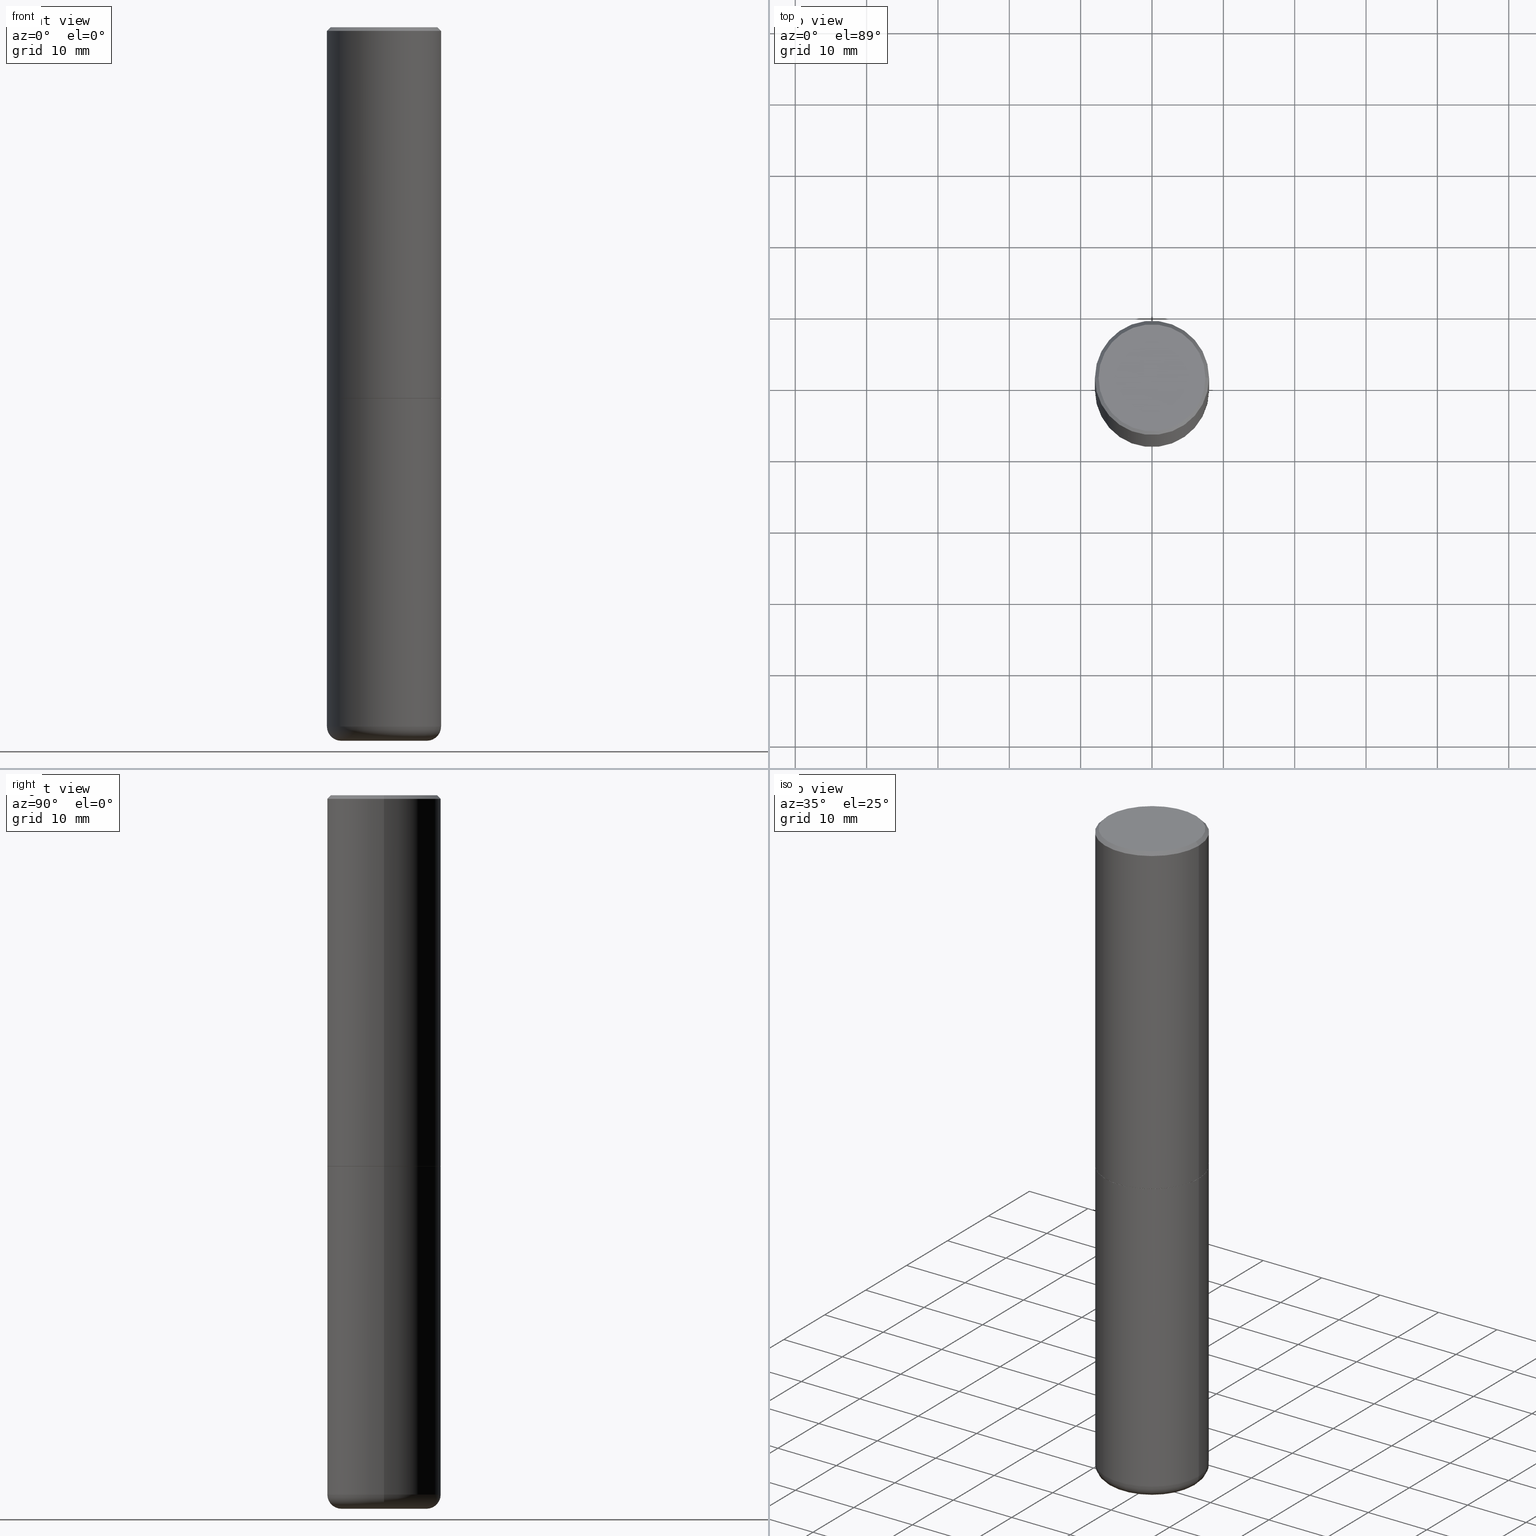
[diagram: canonical four-view strip — front | top / right | iso, engineering-drawing reading convention]
A machine part, canonical four-view strip (front | top / right | iso — engineering-drawing reading convention). The complete STEP part file that produces these views, byte-faithful:
ISO-10303-21;
HEADER;
FILE_DESCRIPTION (( 'STEP AP203' ),
    '1' );
FILE_NAME ('74767.STEP',
    '2024-05-02T19:17:15',
    ( '' ),
    ( '' ),
    'SwSTEP 2.0',
    'SolidWorks 2023',
    '' );
FILE_SCHEMA (( 'CONFIG_CONTROL_DESIGN' ));
ENDSEC;

DATA;
#1 = DIRECTION ( 'NONE',  ( -1.000000000000000000, 6.982962677686265922E-15, -4.876176775795935793E-29 ) ) ;
#2 = EDGE_LOOP ( 'NONE', ( #113, #131, #57, #331 ) ) ;
#3 = FACE_OUTER_BOUND ( 'NONE', #336, .T. ) ;
#4 = CARTESIAN_POINT ( 'NONE',  ( 0.3149500000000000077, -2.199284095337289871E-15, 1.535751875536930130E-29 ) ) ;
#5 = DIRECTION ( 'NONE',  ( -2.445468806185136597E-29, 3.491481338843145583E-15, 1.000000000000000000 ) ) ;
#6 = ADVANCED_FACE ( 'NONE', ( #414 ), #221, .T. ) ;
#7 = APPLICATION_CONTEXT ( 'configuration controlled 3d designs of mechanical parts and assemblies' ) ;
#8 = APPROVAL_STATUS ( 'not_yet_approved' ) ;
#9 = AXIS2_PLACEMENT_3D ( 'NONE', #308, #129, #286 ) ;
#10 = DIRECTION ( 'NONE',  ( -2.445468806185136597E-29, 3.491481338843145583E-15, 1.000000000000000000 ) ) ;
#11 = APPROVAL_ROLE ( '' ) ;
#12 = ADVANCED_FACE ( 'NONE', ( #348 ), #212, .T. ) ;
#13 = DIRECTION ( 'NONE',  ( 1.000000000000000000, -6.982962677686266711E-15, 4.876176775795936353E-29 ) ) ;
#14 = ADVANCED_FACE ( 'NONE', ( #158 ), #312, .T. ) ;
#15 = PERSON_AND_ORGANIZATION ( #81, #203 ) ;
#16 = VERTEX_POINT ( 'NONE', #97 ) ;
#17 = PERSON_AND_ORGANIZATION_ROLE ( 'design_owner' ) ;
#18 = CIRCLE ( 'NONE', #210, 0.2362500000000000155 ) ;
#19 = AXIS2_PLACEMENT_3D ( 'NONE', #378, #218, #67 ) ;
#20 = CC_DESIGN_SECURITY_CLASSIFICATION ( #417, ( #325 ) ) ;
#21 = ADVANCED_FACE ( 'NONE', ( #3 ), #411, .F. ) ;
#22 = PRODUCT_DEFINITION ( 'UNKNOWN', '', #325, #330 ) ;
#23 = ORIENTED_EDGE ( 'NONE', *, *, #146, .T. ) ;
#24 = AXIS2_PLACEMENT_3D ( 'NONE', #282, #306, #345 ) ;
#25 = CIRCLE ( 'NONE', #173, 0.3149500000000002853 ) ;
#26 = CC_DESIGN_APPROVAL ( #53, ( #417 ) ) ;
#27 = DIRECTION ( 'NONE',  ( -2.445468806185136597E-29, 3.491481338843145583E-15, 1.000000000000000000 ) ) ;
#28 = ADVANCED_FACE ( 'NONE', ( #192 ), #166, .T. ) ;
#29 = CARTESIAN_POINT ( 'NONE',  ( 5.003918271216025517E-29, -7.144269115540843617E-15, -2.046199999999999797 ) ) ;
#30 = ORIENTED_EDGE ( 'NONE', *, *, #205, .F. ) ;
#31 = DIRECTION ( 'NONE',  ( 1.000000000000000000, -6.982962677686269866E-15, 0.000000000000000000 ) ) ;
#32 = VERTEX_POINT ( 'NONE', #225 ) ;
#33 = CARTESIAN_POINT ( 'NONE',  ( 2.059624841783562486E-15, 0.2949499999999997679, -9.380394023546260134E-16 ) ) ;
#34 = FACE_OUTER_BOUND ( 'NONE', #165, .T. ) ;
#35 = CONICAL_SURFACE ( 'NONE', #291, 0.3149499999999999522, 0.7853981633974469467 ) ;
#36 = FACE_OUTER_BOUND ( 'NONE', #182, .T. ) ;
#37 = EDGE_CURVE ( 'NONE', #381, #351, #315, .T. ) ;
#38 = CARTESIAN_POINT ( 'NONE',  ( 0.3149500000000000077, -9.347044692216978073E-15, -2.047199999999999687 ) ) ;
#39 = DATE_AND_TIME ( #401, #211 ) ;
#40 = DIRECTION ( 'NONE',  ( -2.445468806185136597E-29, 3.491481338843145583E-15, 1.000000000000000000 ) ) ;
#41 = DIRECTION ( 'NONE',  ( -0.7071067811867165487, 7.493145998870964739E-15, 0.7071067811863784858 ) ) ;
#42 = CIRCLE ( 'NONE', #94, 0.07870000000000021423 ) ;
#43 = DIRECTION ( 'NONE',  ( 1.000000000000000000, -6.982962677686269866E-15, 0.000000000000000000 ) ) ;
#44 = PERSON_AND_ORGANIZATION ( #81, #203 ) ;
#45 = EDGE_CURVE ( 'NONE', #157, #410, #416, .T. ) ;
#46 = ORIENTED_EDGE ( 'NONE', *, *, #205, .T. ) ;
#47 = CARTESIAN_POINT ( 'NONE',  ( -0.3149500000000001743, 2.237854346276436774E-15, -1.549218606675783237E-29 ) ) ;
#48 = AXIS2_PLACEMENT_3D ( 'NONE', #230, #361, #82 ) ;
#49 = APPROVAL_ROLE ( '' ) ;
#50 = PRODUCT_RELATED_PRODUCT_CATEGORY ( 'detail', '', ( #169 ) ) ;
#51 = SHAPE_DEFINITION_REPRESENTATION ( #224, #406 ) ;
#52 = EDGE_CURVE ( 'NONE', #214, #255, #179, .T. ) ;
#53 = APPROVAL ( #64, 'UNSPECIFIED' ) ;
#54 = VECTOR ( 'NONE', #357, 39.37007874015748143 ) ;
#55 = EDGE_CURVE ( 'NONE', #217, #200, #257, .T. ) ;
#56 = EDGE_CURVE ( 'NONE', #377, #16, #362, .T. ) ;
#57 = ORIENTED_EDGE ( 'NONE', *, *, #52, .F. ) ;
#58 = EDGE_LOOP ( 'NONE', ( #23, #364, #63, #340 ) ) ;
#59 = DIRECTION ( 'NONE',  ( 1.000000000000000000, -6.982962677686263555E-15, 0.000000000000000000 ) ) ;
#60 = AXIS2_PLACEMENT_3D ( 'NONE', #93, #247, #89 ) ;
#61 = APPROVAL_PERSON_ORGANIZATION ( #294, #332, #49 ) ;
#62 = CARTESIAN_POINT ( 'NONE',  ( 0.3149499999999999522, -2.230543471175006661E-15, -0.02000000000000006981 ) ) ;
#63 = ORIENTED_EDGE ( 'NONE', *, *, #55, .F. ) ;
#64 = APPROVAL_STATUS ( 'not_yet_approved' ) ;
#65 = CARTESIAN_POINT ( 'NONE',  ( 4.890937612370289799E-31, -6.982962677686315028E-17, -0.02000000000000006981 ) ) ;
#66 = EDGE_LOOP ( 'NONE', ( #246, #311, #391, #119 ) ) ;
#67 = DIRECTION ( 'NONE',  ( 1.000000000000000000, -6.982962677686269866E-15, 0.000000000000000000 ) ) ;
#68 = ADVANCED_FACE ( 'NONE', ( #201 ), #143, .T. ) ;
#69 = DIRECTION ( 'NONE',  ( -2.445468806185136597E-29, 3.491481338843145583E-15, 1.000000000000000000 ) ) ;
#70 = DIRECTION ( 'NONE',  ( 2.438088387897960049E-29, -3.491481338843145188E-15, -1.000000000000000000 ) ) ;
#71 = ADVANCED_FACE ( 'NONE', ( #395 ), #213, .T. ) ;
#72 = AXIS2_PLACEMENT_3D ( 'NONE', #386, #413, #216 ) ;
#73 = DIRECTION ( 'NONE',  ( 2.445468806185136597E-29, -3.491481338843145583E-15, -1.000000000000000000 ) ) ;
#74 = APPROVAL_PERSON_ORGANIZATION ( #76, #53, #11 ) ;
#75 = DIRECTION ( 'NONE',  ( -2.445468806185136597E-29, 3.491481338843145583E-15, 1.000000000000000000 ) ) ;
#76 = PERSON_AND_ORGANIZATION ( #81, #203 ) ;
#77 = FACE_OUTER_BOUND ( 'NONE', #2, .T. ) ;
#78 = MECHANICAL_CONTEXT ( 'NONE', #397, 'mechanical' ) ;
#79 = EDGE_CURVE ( 'NONE', #133, #217, #260, .T. ) ;
#80 = DIRECTION ( 'NONE',  ( 1.000000000000000000, -6.982962677686265133E-15, 4.883557194083112901E-29 ) ) ;
#81 = PERSON ( 'UNSPECIFIED', 'UNSPECIFIED', 'UNSPECIFIED', ('UNSPECIFIED'), ('UNSPECIFIED'), ('UNSPECIFIED') ) ;
#82 = DIRECTION ( 'NONE',  ( -1.000000000000000000, 6.982962677686265922E-15, -4.876176775795935793E-29 ) ) ;
#83 = ORIENTED_EDGE ( 'NONE', *, *, #313, .T. ) ;
#84 = CALENDAR_DATE ( 2024, 2, 5 ) ;
#85 = VECTOR ( 'NONE', #41, 39.37007874015748143 ) ;
#86 = AXIS2_PLACEMENT_3D ( 'NONE', #65, #254, #170 ) ;
#87 = ORIENTED_EDGE ( 'NONE', *, *, #236, .F. ) ;
#88 = ORIENTED_EDGE ( 'NONE', *, *, #270, .T. ) ;
#89 = DIRECTION ( 'NONE',  ( 1.000000000000000000, -6.982962677686265922E-15, 4.876176775795935232E-29 ) ) ;
#90 = PLANE ( 'NONE',  #72 ) ;
#91 = EDGE_CURVE ( 'NONE', #408, #154, #387, .T. ) ;
#92 = ORIENTED_EDGE ( 'NONE', *, *, #37, .F. ) ;
#93 = CARTESIAN_POINT ( 'NONE',  ( 0.000000000000000000, 0.000000000000000000, 0.000000000000000000 ) ) ;
#94 = AXIS2_PLACEMENT_3D ( 'NONE', #383, #310, #222 ) ;
#95 = PLANE ( 'NONE',  #404 ) ;
#96 = ORIENTED_EDGE ( 'NONE', *, *, #37, .T. ) ;
#97 = CARTESIAN_POINT ( 'NONE',  ( -0.2362500000000000155, -1.165031646058715016E-14, -3.937000000000000721 ) ) ;
#98 = CARTESIAN_POINT ( 'NONE',  ( 0.2362500000000000155, -1.539568696362884818E-14, -3.937000000000000721 ) ) ;
#99 = CC_DESIGN_PERSON_AND_ORGANIZATION_ASSIGNMENT ( #44, #17, ( #169 ) ) ;
#100 = DIRECTION ( 'NONE',  ( 1.000000000000000000, -6.982962677686264344E-15, 0.000000000000000000 ) ) ;
#101 = DIRECTION ( 'NONE',  ( 1.000000000000000000, -6.982962677686266711E-15, 0.000000000000000000 ) ) ;
#102 = VECTOR ( 'NONE', #359, 39.37007874015748143 ) ;
#103 = CARTESIAN_POINT ( 'NONE',  ( 4.890937612370289799E-31, -6.982962677686315028E-17, -0.02000000000000006981 ) ) ;
#104 = CARTESIAN_POINT ( 'NONE',  ( 9.627810689950884790E-29, -1.374596203102546657E-14, -3.937000000000000721 ) ) ;
#105 = APPROVAL_STATUS ( 'not_yet_approved' ) ;
#106 = CARTESIAN_POINT ( 'NONE',  ( -0.3149499999999999522, 2.129454468560426178E-15, -0.02000000000000006981 ) ) ;
#107 = DATE_AND_TIME ( #358, #258 ) ;
#108 = ORIENTED_EDGE ( 'NONE', *, *, #91, .F. ) ;
#109 = CARTESIAN_POINT ( 'NONE',  ( 9.435352294904112142E-29, -1.347118244965850850E-14, -3.858300000000000285 ) ) ;
#110 = SECURITY_CLASSIFICATION_LEVEL ( 'unclassified' ) ;
#111 = CONICAL_SURFACE ( 'NONE', #271, 0.3139500000000000068, 0.7853981633976873100 ) ;
#112 = APPROVAL_DATE_TIME ( #398, #53 ) ;
#113 = ORIENTED_EDGE ( 'NONE', *, *, #56, .T. ) ;
#114 = CARTESIAN_POINT ( 'NONE',  ( -0.3139500000000000068, -4.911713223612628457E-15, -2.047199999999999243 ) ) ;
#115 = PERSON_AND_ORGANIZATION ( #81, #203 ) ;
#116 = VECTOR ( 'NONE', #341, 39.37007874015748143 ) ;
#117 = LOCAL_TIME ( 15, 17, 15.00000000000000000, #208 ) ;
#118 = AXIS2_PLACEMENT_3D ( 'NONE', #122, #415, #376 ) ;
#119 = ORIENTED_EDGE ( 'NONE', *, *, #172, .F. ) ;
#120 = CARTESIAN_POINT ( 'NONE',  ( 0.000000000000000000, 0.000000000000000000, 0.000000000000000000 ) ) ;
#121 = ADVANCED_FACE ( 'NONE', ( #388 ), #232, .F. ) ;
#122 = CARTESIAN_POINT ( 'NONE',  ( 5.006363740022209999E-29, -7.147760596879685046E-15, -2.047199999999999243 ) ) ;
#123 = ORIENTED_EDGE ( 'NONE', *, *, #236, .T. ) ;
#124 = DIRECTION ( 'NONE',  ( -2.445468806185136597E-29, 3.491481338843145583E-15, 1.000000000000000000 ) ) ;
#125 = CARTESIAN_POINT ( 'NONE',  ( -4.488561081641444621E-45, 6.408475632635922878E-31, 1.835460370743176819E-16 ) ) ;
#126 = ORIENTED_EDGE ( 'NONE', *, *, #389, .T. ) ;
#127 = AXIS2_PLACEMENT_3D ( 'NONE', #196, #244, #101 ) ;
#128 = APPROVAL_PERSON_ORGANIZATION ( #15, #253, #228 ) ;
#129 = DIRECTION ( 'NONE',  ( -6.982962677686266711E-15, -1.000000000000000000, 3.491481338843145583E-15 ) ) ;
#130 = CC_DESIGN_DATE_AND_TIME_ASSIGNMENT ( #39, #138, ( #417 ) ) ;
#131 = ORIENTED_EDGE ( 'NONE', *, *, #349, .T. ) ;
#132 = CARTESIAN_POINT ( 'NONE',  ( 0.2949499999999997679, -2.127023677808858891E-15, 1.835460370743323251E-16 ) ) ;
#133 = VERTEX_POINT ( 'NONE', #168 ) ;
#134 = DIRECTION ( 'NONE',  ( -2.445468806185136597E-29, 3.491481338843145583E-15, 1.000000000000000000 ) ) ;
#135 = FACE_OUTER_BOUND ( 'NONE', #278, .T. ) ;
#136 = CARTESIAN_POINT ( 'NONE',  ( 0.3149500000000001743, -2.199284095337290660E-15, 1.535751875536930690E-29 ) ) ;
#137 = EDGE_CURVE ( 'NONE', #16, #377, #18, .T. ) ;
#138 = DATE_TIME_ROLE ( 'classification_date' ) ;
#139 = CIRCLE ( 'NONE', #367, 0.3149500000000000077 ) ;
#140 = DIRECTION ( 'NONE',  ( 1.000000000000000000, -6.982962677686265133E-15, 4.883557194083112901E-29 ) ) ;
#141 = DIRECTION ( 'NONE',  ( 1.000000000000000000, -6.982962677686267499E-15, 0.000000000000000000 ) ) ;
#142 = CARTESIAN_POINT ( 'NONE',  ( 0.000000000000000000, 0.000000000000000000, 0.000000000000000000 ) ) ;
#143 = CYLINDRICAL_SURFACE ( 'NONE', #334, 0.3149500000000000077 ) ;
#144 = ORIENTED_EDGE ( 'NONE', *, *, #164, .T. ) ;
#145 =( NAMED_UNIT ( * ) PLANE_ANGLE_UNIT ( ) SI_UNIT ( $, .RADIAN. ) );
#146 = EDGE_CURVE ( 'NONE', #133, #32, #25, .T. ) ;
#147 = CIRCLE ( 'NONE', #371, 0.3149499999999999522 ) ;
#148 = APPLICATION_PROTOCOL_DEFINITION ( 'international standard', 'config_control_design', 1994, #397 ) ;
#149 = EDGE_CURVE ( 'NONE', #32, #200, #327, .T. ) ;
#150 = UNCERTAINTY_MEASURE_WITH_UNIT (LENGTH_MEASURE( 1.000000000000000082E-05 ), #292, 'distance_accuracy_value', 'NONE');
#151 = AXIS2_PLACEMENT_3D ( 'NONE', #176, #329, #140 ) ;
#152 = ORIENTED_EDGE ( 'NONE', *, *, #339, .F. ) ;
#153 = AXIS2_PLACEMENT_3D ( 'NONE', #385, #27, #317 ) ;
#154 = VERTEX_POINT ( 'NONE', #38 ) ;
#155 = ORIENTED_EDGE ( 'NONE', *, *, #339, .T. ) ;
#156 = CARTESIAN_POINT ( 'NONE',  ( -0.3149500000000000077, 2.237854346276435590E-15, -1.549218606675782676E-29 ) ) ;
#157 = VERTEX_POINT ( 'NONE', #287 ) ;
#158 = FACE_OUTER_BOUND ( 'NONE', #58, .T. ) ;
#159 = CARTESIAN_POINT ( 'NONE',  ( 5.006363740022209999E-29, -7.147760596879685046E-15, -2.047199999999999243 ) ) ;
#160 = ORIENTED_EDGE ( 'NONE', *, *, #272, .T. ) ;
#161 = DIRECTION ( 'NONE',  ( -1.000000000000000000, 6.982962677686265922E-15, -4.876176775795935793E-29 ) ) ;
#162 = CIRCLE ( 'NONE', #342, 0.2949499999999997679 ) ;
#163 = FACE_OUTER_BOUND ( 'NONE', #305, .T. ) ;
#164 = EDGE_CURVE ( 'NONE', #410, #32, #198, .T. ) ;
#165 = EDGE_LOOP ( 'NONE', ( #92, #126, #373, #174 ) ) ;
#166 = CYLINDRICAL_SURFACE ( 'NONE', #24, 0.3149500000000000077 ) ;
#167 = DIRECTION ( 'NONE',  ( -2.445468806185136877E-29, 3.491481338843145188E-15, 1.000000000000000000 ) ) ;
#168 = CARTESIAN_POINT ( 'NONE',  ( 0.3149500000000002853, -9.343553210878135066E-15, -2.046199999999999797 ) ) ;
#169 = PRODUCT ( '74767', '74767', '', ( #78 ) ) ;
#170 = DIRECTION ( 'NONE',  ( -1.000000000000000000, 6.982962677686266711E-15, 0.000000000000000000 ) ) ;
#171 = CARTESIAN_POINT ( 'NONE',  ( 9.435352294904112142E-29, -1.347118244965850850E-14, -3.858300000000000285 ) ) ;
#172 = EDGE_CURVE ( 'NONE', #255, #214, #184, .T. ) ;
#173 = AXIS2_PLACEMENT_3D ( 'NONE', #204, #10, #141 ) ;
#174 = ORIENTED_EDGE ( 'NONE', *, *, #313, .F. ) ;
#175 = CARTESIAN_POINT ( 'NONE',  ( 0.000000000000000000, 0.000000000000000000, 0.000000000000000000 ) ) ;
#176 = CARTESIAN_POINT ( 'NONE',  ( 9.435352294904112142E-29, -1.347118244965850850E-14, -3.858300000000000285 ) ) ;
#177 = AXIS2_PLACEMENT_3D ( 'NONE', #320, #134, #352 ) ;
#178 =( LENGTH_UNIT ( ) NAMED_UNIT ( * ) SI_UNIT ( $, .METRE. ) );
#179 = CIRCLE ( 'NONE', #233, 0.3149500000000000077 ) ;
#180 = CC_DESIGN_APPROVAL ( #332, ( #22 ) ) ;
#181 = DIMENSIONAL_EXPONENTS ( 1.000000000000000000, 0.000000000000000000, 0.000000000000000000, 0.000000000000000000, 0.000000000000000000, 0.000000000000000000, 0.000000000000000000 ) ;
#182 = EDGE_LOOP ( 'NONE', ( #235, #144, #301, #152 ) ) ;
#183 = ORIENTED_EDGE ( 'NONE', *, *, #172, .T. ) ;
#184 = CIRCLE ( 'NONE', #302, 0.3149500000000000077 ) ;
#185 = MANIFOLD_SOLID_BREP ( 'Body-Move/Copy2[1]', #193 ) ;
#186 = CARTESIAN_POINT ( 'NONE',  ( 5.006363740022211120E-29, -7.147760596879686624E-15, -2.047199999999999687 ) ) ;
#187 = ORIENTED_EDGE ( 'NONE', *, *, #56, .F. ) ;
#188 = CARTESIAN_POINT ( 'NONE',  ( -0.3149499999999999522, 2.129454468560426178E-15, -0.02000000000000006981 ) ) ;
#189 = ORIENTED_EDGE ( 'NONE', *, *, #270, .F. ) ;
#190 = DIRECTION ( 'NONE',  ( -1.000000000000000000, 6.982962677686266711E-15, 0.000000000000000000 ) ) ;
#191 = ORIENTED_EDGE ( 'NONE', *, *, #45, .F. ) ;
#192 = FACE_OUTER_BOUND ( 'NONE', #242, .T. ) ;
#193 = CLOSED_SHELL ( 'NONE', ( #28, #405, #121, #68, #71, #338 ) ) ;
#194 = AXIS2_PLACEMENT_3D ( 'NONE', #142, #259, #206 ) ;
#195 = DIRECTION ( 'NONE',  ( 0.7071067811865465735, -7.319954787623252890E-15, -0.7071067811865484609 ) ) ;
#196 = CARTESIAN_POINT ( 'NONE',  ( 4.890937612370289799E-31, -6.982962677686315028E-17, -0.02000000000000006981 ) ) ;
#197 = LINE ( 'NONE', #188, #318 ) ;
#198 = LINE ( 'NONE', #322, #85 ) ;
#199 = PERSON_AND_ORGANIZATION ( #81, #203 ) ;
#200 = VERTEX_POINT ( 'NONE', #106 ) ;
#201 = FACE_OUTER_BOUND ( 'NONE', #275, .T. ) ;
#202 = APPROVAL_DATE_TIME ( #366, #332 ) ;
#203 = ORGANIZATION ( 'UNSPECIFIED', 'UNSPECIFIED', '' ) ;
#204 = CARTESIAN_POINT ( 'NONE',  ( 5.003918271216025517E-29, -7.144269115540843617E-15, -2.046199999999999797 ) ) ;
#205 = EDGE_CURVE ( 'NONE', #255, #408, #283, .T. ) ;
#206 = DIRECTION ( 'NONE',  ( 1.000000000000000000, 0.000000000000000000, 0.000000000000000000 ) ) ;
#207 = ORIENTED_EDGE ( 'NONE', *, *, #273, .T. ) ;
#208 = COORDINATED_UNIVERSAL_TIME_OFFSET ( 5, 0, .BEHIND. ) ;
#209 = DIRECTION ( 'NONE',  ( 1.000000000000000000, -6.982962677686266711E-15, 0.000000000000000000 ) ) ;
#210 = AXIS2_PLACEMENT_3D ( 'NONE', #104, #5, #227 ) ;
#211 = LOCAL_TIME ( 15, 17, 15.00000000000000000, #393 ) ;
#212 = CONICAL_SURFACE ( 'NONE', #177, 0.3139500000000000068, 0.7853981633976873100 ) ;
#213 = TOROIDAL_SURFACE ( 'NONE', #248, 0.2362500000000000155, 0.07870000000000022811 ) ;
#214 = VERTEX_POINT ( 'NONE', #277 ) ;
#215 = EDGE_LOOP ( 'NONE', ( #187, #281 ) ) ;
#216 = DIRECTION ( 'NONE',  ( 1.000000000000000000, -6.982962677686265922E-15, 4.876176775795935793E-29 ) ) ;
#217 = VERTEX_POINT ( 'NONE', #62 ) ;
#218 = DIRECTION ( 'NONE',  ( -2.445468806185136597E-29, 3.491481338843145583E-15, 1.000000000000000000 ) ) ;
#219 = VECTOR ( 'NONE', #346, 39.37007874015748143 ) ;
#220 = LINE ( 'NONE', #355, #219 ) ;
#221 = CYLINDRICAL_SURFACE ( 'NONE', #60, 0.3149500000000001743 ) ;
#222 = DIRECTION ( 'NONE',  ( -1.000000000000000000, 7.105427357600997914E-15, 0.000000000000000000 ) ) ;
#223 = ORIENTED_EDGE ( 'NONE', *, *, #79, .T. ) ;
#224 = PRODUCT_DEFINITION_SHAPE ( 'NONE', 'NONE',  #22 ) ;
#225 = CARTESIAN_POINT ( 'NONE',  ( -0.3149500000000002853, -1.369195024882414317E-15, -2.046199999999999797 ) ) ;
#226 = DIRECTION ( 'NONE',  ( 2.438088387897960049E-29, -3.491481338843145188E-15, -1.000000000000000000 ) ) ;
#227 = DIRECTION ( 'NONE',  ( 1.000000000000000000, -6.982962677686269866E-15, 0.000000000000000000 ) ) ;
#228 = APPROVAL_ROLE ( '' ) ;
#229 = ORIENTED_EDGE ( 'NONE', *, *, #269, .F. ) ;
#230 = CARTESIAN_POINT ( 'NONE',  ( 8.726305720484796028E-29, -1.820591954908441559E-15, -2.047200000000000131 ) ) ;
#231 = PERSON_AND_ORGANIZATION_ROLE ( 'creator' ) ;
#232 = PLANE ( 'NONE',  #48 ) ;
#233 = AXIS2_PLACEMENT_3D ( 'NONE', #285, #124, #59 ) ;
#234 = PERSON_AND_ORGANIZATION ( #81, #203 ) ;
#235 = ORIENTED_EDGE ( 'NONE', *, *, #45, .T. ) ;
#236 = EDGE_CURVE ( 'NONE', #154, #408, #139, .T. ) ;
#237 = CC_DESIGN_PERSON_AND_ORGANIZATION_ASSIGNMENT ( #115, #261, ( #22 ) ) ;
#238 = ADVANCED_FACE ( 'NONE', ( #36 ), #111, .T. ) ;
#239 = VECTOR ( 'NONE', #167, 39.37007874015748143 ) ;
#240 = CIRCLE ( 'NONE', #9, 0.07870000000000021423 ) ;
#241 = EDGE_CURVE ( 'NONE', #377, #214, #240, .T. ) ;
#242 = EDGE_LOOP ( 'NONE', ( #276, #46, #87, #229 ) ) ;
#243 = CARTESIAN_POINT ( 'NONE',  ( -0.3149500000000001743, -1.123332810338207409E-14, -3.858300000000000285 ) ) ;
#244 = DIRECTION ( 'NONE',  ( -2.445468806185136597E-29, 3.491481338843145583E-15, 1.000000000000000000 ) ) ;
#245 = DIRECTION ( 'NONE',  ( -0.7071067811865465735, 2.468850131082246805E-15, -0.7071067811865484609 ) ) ;
#246 = ORIENTED_EDGE ( 'NONE', *, *, #349, .F. ) ;
#247 = DIRECTION ( 'NONE',  ( -2.445468806185136597E-29, 3.491481338843145583E-15, 1.000000000000000000 ) ) ;
#248 = AXIS2_PLACEMENT_3D ( 'NONE', #109, #256, #80 ) ;
#249 = CARTESIAN_POINT ( 'NONE',  ( 3.269820629346959503E-29, -2.285096567213124640E-14, -3.937000000000000277 ) ) ;
#250 = EDGE_LOOP ( 'NONE', ( #399, #88, #155, #344 ) ) ;
#251 = DIRECTION ( 'NONE',  ( -2.445468806185136597E-29, 3.491481338843145583E-15, 1.000000000000000000 ) ) ;
#252 = DIRECTION ( 'NONE',  ( 1.000000000000000000, -6.982962677686264344E-15, 0.000000000000000000 ) ) ;
#253 = APPROVAL ( #105, 'UNSPECIFIED' ) ;
#254 = DIRECTION ( 'NONE',  ( 2.445468806185136597E-29, -3.491481338843145583E-15, -1.000000000000000000 ) ) ;
#255 = VERTEX_POINT ( 'NONE', #243 ) ;
#256 = DIRECTION ( 'NONE',  ( -2.445468806185136597E-29, 3.491481338843145583E-15, 1.000000000000000000 ) ) ;
#257 = CIRCLE ( 'NONE', #127, 0.3149499999999999522 ) ;
#258 = LOCAL_TIME ( 15, 17, 15.00000000000000000, #263 ) ;
#259 = DIRECTION ( 'NONE',  ( 0.000000000000000000, 0.000000000000000000, 1.000000000000000000 ) ) ;
#260 = LINE ( 'NONE', #136, #102 ) ;
#261 = PERSON_AND_ORGANIZATION_ROLE ( 'creator' ) ;
#262 = DIRECTION ( 'NONE',  ( -2.445468806185136597E-29, 3.491481338843145583E-15, 1.000000000000000000 ) ) ;
#263 = COORDINATED_UNIVERSAL_TIME_OFFSET ( 5, 0, .BEHIND. ) ;
#264 = ORIENTED_EDGE ( 'NONE', *, *, #91, .T. ) ;
#265 = AXIS2_PLACEMENT_3D ( 'NONE', #33, #70, #161 ) ;
#266 = CONICAL_SURFACE ( 'NONE', #86, 0.3149499999999999522, 0.7853981633974469467 ) ;
#267 = APPROVAL_DATE_TIME ( #107, #253 ) ;
#268 = APPLICATION_PROTOCOL_DEFINITION ( 'international standard', 'config_control_design', 1994, #7 ) ;
#269 = EDGE_CURVE ( 'NONE', #214, #154, #353, .T. ) ;
#270 = EDGE_CURVE ( 'NONE', #410, #157, #380, .T. ) ;
#271 = AXIS2_PLACEMENT_3D ( 'NONE', #159, #251, #100 ) ;
#272 = EDGE_CURVE ( 'NONE', #351, #381, #162, .T. ) ;
#273 = EDGE_CURVE ( 'NONE', #32, #133, #407, .T. ) ;
#274 = AXIS2_PLACEMENT_3D ( 'NONE', #418, #354, #252 ) ;
#275 = EDGE_LOOP ( 'NONE', ( #30, #183, #356, #108 ) ) ;
#276 = ORIENTED_EDGE ( 'NONE', *, *, #52, .T. ) ;
#277 = CARTESIAN_POINT ( 'NONE',  ( 0.3149500000000001743, -1.567046654499579837E-14, -3.858300000000000285 ) ) ;
#278 = EDGE_LOOP ( 'NONE', ( #309, #316, #83, #347 ) ) ;
#279 = CARTESIAN_POINT ( 'NONE',  ( -0.2949499999999997679, 2.094539655171994924E-15, 1.835460370743031619E-16 ) ) ;
#280 = CLOSED_SHELL ( 'NONE', ( #238, #14, #303, #300, #6, #12, #307, #21 ) ) ;
#281 = ORIENTED_EDGE ( 'NONE', *, *, #137, .F. ) ;
#282 = CARTESIAN_POINT ( 'NONE',  ( 0.000000000000000000, 0.000000000000000000, 0.000000000000000000 ) ) ;
#283 = LINE ( 'NONE', #156, #116 ) ;
#284 = ORIENTED_EDGE ( 'NONE', *, *, #149, .F. ) ;
#285 = CARTESIAN_POINT ( 'NONE',  ( 9.435352294904112142E-29, -1.347118244965850850E-14, -3.858300000000000285 ) ) ;
#286 = DIRECTION ( 'NONE',  ( 1.000000000000000000, -6.982962677686276177E-15, 0.000000000000000000 ) ) ;
#287 = CARTESIAN_POINT ( 'NONE',  ( 0.3139500000000000068, -9.340061729539288903E-15, -2.047199999999999243 ) ) ;
#288 = DATE_AND_TIME ( #84, #343 ) ;
#289 = DIRECTION ( 'NONE',  ( -2.445468806185136597E-29, 3.491481338843145583E-15, 1.000000000000000000 ) ) ;
#290 = CC_DESIGN_DATE_AND_TIME_ASSIGNMENT ( #288, #390, ( #22 ) ) ;
#291 = AXIS2_PLACEMENT_3D ( 'NONE', #103, #73, #190 ) ;
#292 =( CONVERSION_BASED_UNIT ( 'INCH', #335 ) LENGTH_UNIT ( ) NAMED_UNIT ( #181 ) );
#293 = DIRECTION ( 'NONE',  ( -2.445468806185136597E-29, 3.491481338843145583E-15, 1.000000000000000000 ) ) ;
#294 = PERSON_AND_ORGANIZATION ( #81, #203 ) ;
#295 = EDGE_LOOP ( 'NONE', ( #123, #264 ) ) ;
#296 =( GEOMETRIC_REPRESENTATION_CONTEXT ( 3 ) GLOBAL_UNCERTAINTY_ASSIGNED_CONTEXT ( ( #150 ) ) GLOBAL_UNIT_ASSIGNED_CONTEXT ( ( #292, #145, #297 ) ) REPRESENTATION_CONTEXT ( 'NONE', 'WORKASPACE' ) );
#297 =( NAMED_UNIT ( * ) SI_UNIT ( $, .STERADIAN. ) SOLID_ANGLE_UNIT ( ) );
#298 = AXIS2_PLACEMENT_3D ( 'NONE', #323, #262, #43 ) ;
#299 = COORDINATED_UNIVERSAL_TIME_OFFSET ( 5, 0, .BEHIND. ) ;
#300 = ADVANCED_FACE ( 'NONE', ( #135 ), #35, .T. ) ;
#301 = ORIENTED_EDGE ( 'NONE', *, *, #146, .F. ) ;
#302 = AXIS2_PLACEMENT_3D ( 'NONE', #171, #289, #392 ) ;
#303 = ADVANCED_FACE ( 'NONE', ( #34 ), #266, .T. ) ;
#304 = CC_DESIGN_APPROVAL ( #253, ( #325 ) ) ;
#305 = EDGE_LOOP ( 'NONE', ( #191, #189 ) ) ;
#306 = DIRECTION ( 'NONE',  ( -2.445468806185136597E-29, 3.491481338843145583E-15, 1.000000000000000000 ) ) ;
#307 = ADVANCED_FACE ( 'NONE', ( #163 ), #90, .F. ) ;
#308 = CARTESIAN_POINT ( 'NONE',  ( 0.2362500000000000155, -1.512090738226188853E-14, -3.858300000000000285 ) ) ;
#309 = ORIENTED_EDGE ( 'NONE', *, *, #389, .F. ) ;
#310 = DIRECTION ( 'NONE',  ( 7.105427357601001859E-15, 1.000000000000000000, -3.491481338843145583E-15 ) ) ;
#311 = ORIENTED_EDGE ( 'NONE', *, *, #137, .T. ) ;
#312 = CYLINDRICAL_SURFACE ( 'NONE', #400, 0.3149500000000001743 ) ;
#313 = EDGE_CURVE ( 'NONE', #351, #200, #197, .T. ) ;
#314 = DIRECTION ( 'NONE',  ( 1.000000000000000000, -6.982962677686265922E-15, 4.874125435057325556E-29 ) ) ;
#315 = CIRCLE ( 'NONE', #153, 0.2949499999999997679 ) ;
#316 = ORIENTED_EDGE ( 'NONE', *, *, #272, .F. ) ;
#317 = DIRECTION ( 'NONE',  ( 1.000000000000000000, -6.982962677686265922E-15, 4.874125435057325556E-29 ) ) ;
#318 = VECTOR ( 'NONE', #245, 39.37007874015748143 ) ;
#319 = DIRECTION ( 'NONE',  ( 1.000000000000000000, -6.982962677686267499E-15, 0.000000000000000000 ) ) ;
#320 = CARTESIAN_POINT ( 'NONE',  ( 5.006363740022209999E-29, -7.147760596879685046E-15, -2.047199999999999243 ) ) ;
#321 = DIRECTION ( 'NONE',  ( -2.445468806185136597E-29, 3.491481338843145583E-15, 1.000000000000000000 ) ) ;
#322 = CARTESIAN_POINT ( 'NONE',  ( -0.3139500000000000068, -4.917011677960851648E-15, -2.047199999999999243 ) ) ;
#323 = CARTESIAN_POINT ( 'NONE',  ( 5.006363740022211120E-29, -7.147760596879686624E-15, -2.047199999999999687 ) ) ;
#324 = TOROIDAL_SURFACE ( 'NONE', #151, 0.2362500000000000155, 0.07870000000000022811 ) ;
#325 = PRODUCT_DEFINITION_FORMATION_WITH_SPECIFIED_SOURCE ( 'ANY', '', #169, .NOT_KNOWN. ) ;
#326 = PERSON_AND_ORGANIZATION ( #81, #203 ) ;
#327 = LINE ( 'NONE', #47, #54 ) ;
#328 = MANIFOLD_SOLID_BREP ( 'Body-Move/Copy2[2]', #280 ) ;
#329 = DIRECTION ( 'NONE',  ( -2.445468806185136597E-29, 3.491481338843145583E-15, 1.000000000000000000 ) ) ;
#330 = DESIGN_CONTEXT ( 'detailed design', #7, 'design' ) ;
#331 = ORIENTED_EDGE ( 'NONE', *, *, #241, .F. ) ;
#332 = APPROVAL ( #8, 'UNSPECIFIED' ) ;
#333 = DIRECTION ( 'NONE',  ( -2.445468806185136597E-29, 3.491481338843145583E-15, 1.000000000000000000 ) ) ;
#334 = AXIS2_PLACEMENT_3D ( 'NONE', #175, #293, #13 ) ;
#335 = LENGTH_MEASURE_WITH_UNIT ( LENGTH_MEASURE( 0.02539999999999999897 ), #178 );
#336 = EDGE_LOOP ( 'NONE', ( #160, #96 ) ) ;
#337 = AXIS2_PLACEMENT_3D ( 'NONE', #29, #40, #319 ) ;
#338 = ADVANCED_FACE ( 'NONE', ( #379 ), #95, .T. ) ;
#339 = EDGE_CURVE ( 'NONE', #157, #133, #220, .T. ) ;
#340 = ORIENTED_EDGE ( 'NONE', *, *, #79, .F. ) ;
#341 = DIRECTION ( 'NONE',  ( -2.445468806185136877E-29, 3.491481338843145188E-15, 1.000000000000000000 ) ) ;
#342 = AXIS2_PLACEMENT_3D ( 'NONE', #125, #321, #314 ) ;
#343 = LOCAL_TIME ( 15, 17, 15.00000000000000000, #394 ) ;
#344 = ORIENTED_EDGE ( 'NONE', *, *, #273, .F. ) ;
#345 = DIRECTION ( 'NONE',  ( 1.000000000000000000, -6.982962677686266711E-15, 4.876176775795936353E-29 ) ) ;
#346 = DIRECTION ( 'NONE',  ( 0.7071067811867165487, -2.468850131084027659E-15, 0.7071067811863784858 ) ) ;
#347 = ORIENTED_EDGE ( 'NONE', *, *, #412, .T. ) ;
#348 = FACE_OUTER_BOUND ( 'NONE', #250, .T. ) ;
#349 = EDGE_CURVE ( 'NONE', #16, #255, #42, .T. ) ;
#350 = LINE ( 'NONE', #384, #370 ) ;
#351 = VERTEX_POINT ( 'NONE', #279 ) ;
#352 = DIRECTION ( 'NONE',  ( 1.000000000000000000, -6.982962677686264344E-15, 0.000000000000000000 ) ) ;
#353 = LINE ( 'NONE', #4, #239 ) ;
#354 = DIRECTION ( 'NONE',  ( -2.445468806185136597E-29, 3.491481338843145583E-15, 1.000000000000000000 ) ) ;
#355 = CARTESIAN_POINT ( 'NONE',  ( 0.3139500000000000068, -9.340061729539288903E-15, -2.047199999999999243 ) ) ;
#356 = ORIENTED_EDGE ( 'NONE', *, *, #269, .T. ) ;
#357 = DIRECTION ( 'NONE',  ( -2.445468806185136877E-29, 3.491481338843145188E-15, 1.000000000000000000 ) ) ;
#358 = CALENDAR_DATE ( 2024, 2, 5 ) ;
#359 = DIRECTION ( 'NONE',  ( -2.445468806185136877E-29, 3.491481338843145188E-15, 1.000000000000000000 ) ) ;
#360 = CARTESIAN_POINT ( 'NONE',  ( 4.890937612370289799E-31, -6.982962677686315028E-17, -0.02000000000000006981 ) ) ;
#361 = DIRECTION ( 'NONE',  ( 2.438088387897960049E-29, -3.491481338843145188E-15, -1.000000000000000000 ) ) ;
#362 = CIRCLE ( 'NONE', #19, 0.2362500000000000155 ) ;
#363 = PERSON_AND_ORGANIZATION_ROLE ( 'classification_officer' ) ;
#364 = ORIENTED_EDGE ( 'NONE', *, *, #149, .T. ) ;
#365 = CC_DESIGN_PERSON_AND_ORGANIZATION_ASSIGNMENT ( #234, #363, ( #417 ) ) ;
#366 = DATE_AND_TIME ( #402, #117 ) ;
#367 = AXIS2_PLACEMENT_3D ( 'NONE', #186, #69, #31 ) ;
#368 = CC_DESIGN_PERSON_AND_ORGANIZATION_ASSIGNMENT ( #326, #396, ( #325 ) ) ;
#369 = EDGE_LOOP ( 'NONE', ( #284, #207, #223, #375 ) ) ;
#370 = VECTOR ( 'NONE', #195, 39.37007874015748143 ) ;
#371 = AXIS2_PLACEMENT_3D ( 'NONE', #360, #333, #209 ) ;
#372 = LOCAL_TIME ( 15, 17, 15.00000000000000000, #299 ) ;
#373 = ORIENTED_EDGE ( 'NONE', *, *, #55, .T. ) ;
#374 = CC_DESIGN_PERSON_AND_ORGANIZATION_ASSIGNMENT ( #199, #231, ( #325 ) ) ;
#375 = ORIENTED_EDGE ( 'NONE', *, *, #412, .F. ) ;
#376 = DIRECTION ( 'NONE',  ( 1.000000000000000000, -6.982962677686264344E-15, 0.000000000000000000 ) ) ;
#377 = VERTEX_POINT ( 'NONE', #98 ) ;
#378 = CARTESIAN_POINT ( 'NONE',  ( 9.627810689950884790E-29, -1.374596203102546657E-14, -3.937000000000000721 ) ) ;
#379 = FACE_OUTER_BOUND ( 'NONE', #215, .T. ) ;
#380 = CIRCLE ( 'NONE', #118, 0.3139500000000000068 ) ;
#381 = VERTEX_POINT ( 'NONE', #132 ) ;
#382 = DIRECTION ( 'NONE',  ( 1.000000000000000000, -6.982962677686265922E-15, 4.876176775795935232E-29 ) ) ;
#383 = CARTESIAN_POINT ( 'NONE',  ( -0.2362500000000000155, -1.179252523642527130E-14, -3.858300000000000285 ) ) ;
#384 = CARTESIAN_POINT ( 'NONE',  ( 0.3149499999999999522, -2.230543471175006661E-15, -0.02000000000000006981 ) ) ;
#385 = CARTESIAN_POINT ( 'NONE',  ( -4.488561081641444621E-45, 6.408475632635922878E-31, 1.835460370743176819E-16 ) ) ;
#386 = CARTESIAN_POINT ( 'NONE',  ( 5.006363740022211680E-29, -7.147760596879688202E-15, -2.047200000000000131 ) ) ;
#387 = CIRCLE ( 'NONE', #298, 0.3149500000000000077 ) ;
#388 = FACE_OUTER_BOUND ( 'NONE', #295, .T. ) ;
#389 = EDGE_CURVE ( 'NONE', #381, #217, #350, .T. ) ;
#390 = DATE_TIME_ROLE ( 'creation_date' ) ;
#391 = ORIENTED_EDGE ( 'NONE', *, *, #241, .T. ) ;
#392 = DIRECTION ( 'NONE',  ( 1.000000000000000000, -6.982962677686263555E-15, 0.000000000000000000 ) ) ;
#393 = COORDINATED_UNIVERSAL_TIME_OFFSET ( 5, 0, .BEHIND. ) ;
#394 = COORDINATED_UNIVERSAL_TIME_OFFSET ( 5, 0, .BEHIND. ) ;
#395 = FACE_OUTER_BOUND ( 'NONE', #66, .T. ) ;
#396 = PERSON_AND_ORGANIZATION_ROLE ( 'design_supplier' ) ;
#397 = APPLICATION_CONTEXT ( 'configuration controlled 3d designs of mechanical parts and assemblies' ) ;
#398 = DATE_AND_TIME ( #403, #372 ) ;
#399 = ORIENTED_EDGE ( 'NONE', *, *, #164, .F. ) ;
#400 = AXIS2_PLACEMENT_3D ( 'NONE', #120, #75, #382 ) ;
#401 = CALENDAR_DATE ( 2024, 2, 5 ) ;
#402 = CALENDAR_DATE ( 2024, 2, 5 ) ;
#403 = CALENDAR_DATE ( 2024, 2, 5 ) ;
#404 = AXIS2_PLACEMENT_3D ( 'NONE', #249, #226, #1 ) ;
#405 = ADVANCED_FACE ( 'NONE', ( #77 ), #324, .T. ) ;
#406 = ADVANCED_BREP_SHAPE_REPRESENTATION ( '74767', ( #185, #328, #194 ), #296 ) ;
#407 = CIRCLE ( 'NONE', #337, 0.3149500000000002853 ) ;
#408 = VERTEX_POINT ( 'NONE', #409 ) ;
#409 = CARTESIAN_POINT ( 'NONE',  ( -0.3149500000000000077, -8.071617176992661576E-15, -2.047199999999999687 ) ) ;
#410 = VERTEX_POINT ( 'NONE', #114 ) ;
#411 = PLANE ( 'NONE',  #265 ) ;
#412 = EDGE_CURVE ( 'NONE', #200, #217, #147, .T. ) ;
#413 = DIRECTION ( 'NONE',  ( -2.438088387897960049E-29, 3.491481338843145188E-15, 1.000000000000000000 ) ) ;
#414 = FACE_OUTER_BOUND ( 'NONE', #369, .T. ) ;
#415 = DIRECTION ( 'NONE',  ( -2.445468806185136597E-29, 3.491481338843145583E-15, 1.000000000000000000 ) ) ;
#416 = CIRCLE ( 'NONE', #274, 0.3139500000000000068 ) ;
#417 = SECURITY_CLASSIFICATION ( '', '', #110 ) ;
#418 = CARTESIAN_POINT ( 'NONE',  ( 5.006363740022209999E-29, -7.147760596879685046E-15, -2.047199999999999243 ) ) ;
ENDSEC;
END-ISO-10303-21;
